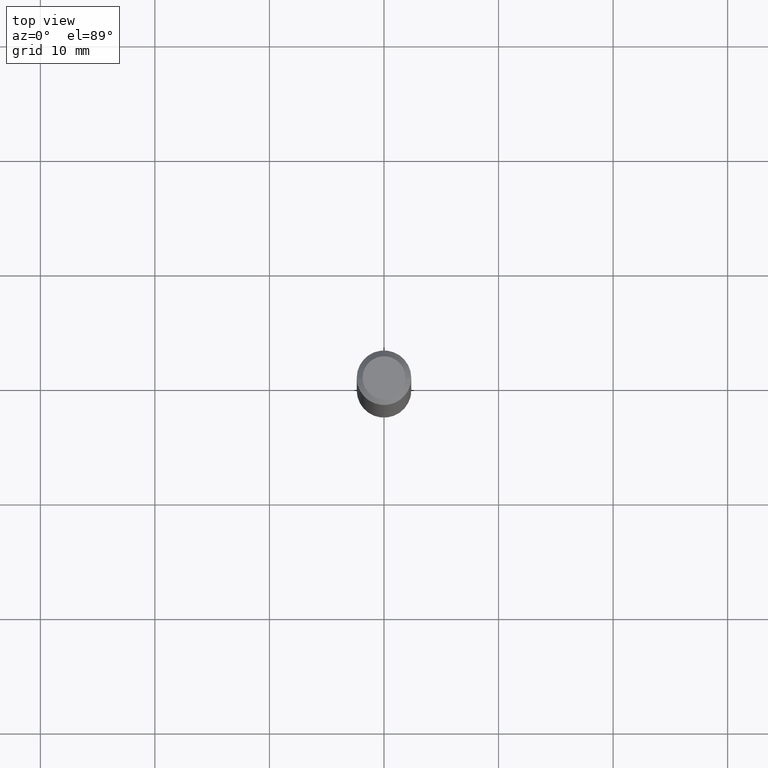
[diagram: clean part render]
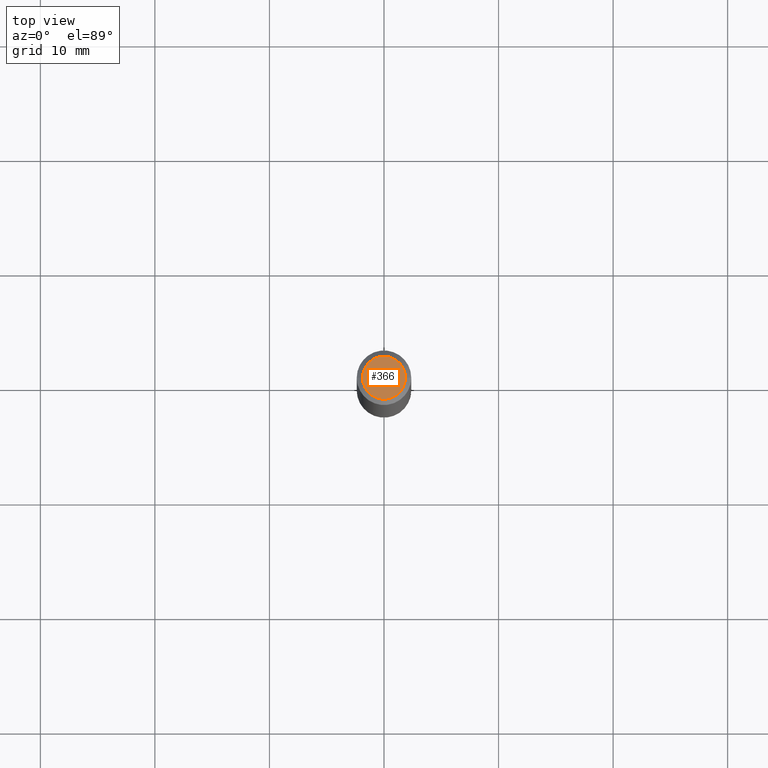
[diagram: same view with one face highlighted and labeled with its STEP entity id]
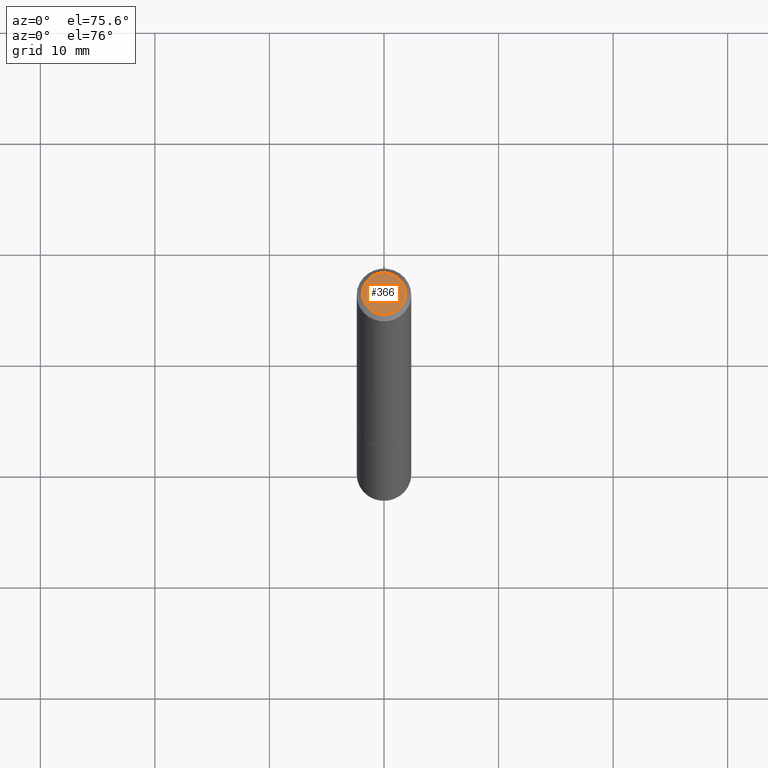
[diagram: same view with one face highlighted and labeled with its STEP entity id]
A machine part, top view. The second image highlights one B-rep face of the part: STEP entity #366.
A second angle (auxiliary view) of the same face is appended — the face is thin or edge-on in the first view.
In plain terms, the highlighted planar face has unit normal (0, -0, -1).
Its self-contained STEP definition (entity closure, byte-faithful):
#6 = CARTESIAN_POINT ( 'NONE',  ( 5.149934974793607105E-16, 0.07374999999999978795, -2.574967487396812920E-16 ) ) ;
#26 = ORIENTED_EDGE ( 'NONE', *, *, #186, .T. ) ;
#84 = DIRECTION ( 'NONE',  ( 1.000000000000000000, -6.982962677686266711E-15, 4.876176775795936914E-29 ) ) ;
#141 = DIRECTION ( 'NONE',  ( -2.445468806185136597E-29, 3.491481338843145583E-15, 1.000000000000000000 ) ) ;
#144 = AXIS2_PLACEMENT_3D ( 'NONE', #380, #141, #301 ) ;
#149 = EDGE_CURVE ( 'NONE', #358, #377, #345, .T. ) ;
#151 = CARTESIAN_POINT ( 'NONE',  ( 0.07374999999999978795, -6.094815207017957253E-16, 3.931526600461595245E-30 ) ) ;
#158 = CIRCLE ( 'NONE', #144, 0.07374999999999978795 ) ;
#178 = ORIENTED_EDGE ( 'NONE', *, *, #149, .T. ) ;
#184 = DIRECTION ( 'NONE',  ( -1.000000000000000000, 6.982962677686265922E-15, -4.876176775795935793E-29 ) ) ;
#186 = EDGE_CURVE ( 'NONE', #377, #358, #158, .T. ) ;
#187 = DIRECTION ( 'NONE',  ( 2.438088387897960049E-29, -3.491481338843145188E-15, -1.000000000000000000 ) ) ;
#233 = DIRECTION ( 'NONE',  ( -2.445468806185136597E-29, 3.491481338843145583E-15, 1.000000000000000000 ) ) ;
#240 = CARTESIAN_POINT ( 'NONE',  ( 0.000000000000000000, 0.000000000000000000, 0.000000000000000000 ) ) ;
#277 = AXIS2_PLACEMENT_3D ( 'NONE', #240, #233, #84 ) ;
#301 = DIRECTION ( 'NONE',  ( 1.000000000000000000, -6.982962677686266711E-15, 4.876176775795936914E-29 ) ) ;
#334 = PLANE ( 'NONE',  #336 ) ;
#336 = AXIS2_PLACEMENT_3D ( 'NONE', #6, #187, #184 ) ;
#339 = CARTESIAN_POINT ( 'NONE',  ( -0.07374999999999978795, 5.499083108677917680E-16, -3.723527850031183460E-30 ) ) ;
#345 = CIRCLE ( 'NONE', #277, 0.07374999999999978795 ) ;
#348 = EDGE_LOOP ( 'NONE', ( #26, #178 ) ) ;
#358 = VERTEX_POINT ( 'NONE', #151 ) ;
#361 = FACE_OUTER_BOUND ( 'NONE', #348, .T. ) ;
#366 = ADVANCED_FACE ( 'NONE', ( #361 ), #334, .F. ) ;
#377 = VERTEX_POINT ( 'NONE', #339 ) ;
#380 = CARTESIAN_POINT ( 'NONE',  ( 0.000000000000000000, 0.000000000000000000, 0.000000000000000000 ) ) ;